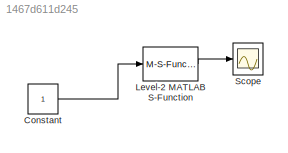
MODEL slx_1467d611d245
KIND model
BLOCK [Constant] Constant
BLOCK [M-S-Function] Level-2 MATLAB S-Function
  FunctionName = blah
  Ports = [1, 1]
BLOCK [Scope] Scope
  Floating = off
  NumInputPorts = 1
  Ports = [1]
  ShowLegends = off
LINE Constant:1 -> Level-2 MATLAB S-Function:1
LINE Level-2 MATLAB S-Function:1 -> Scope:1
